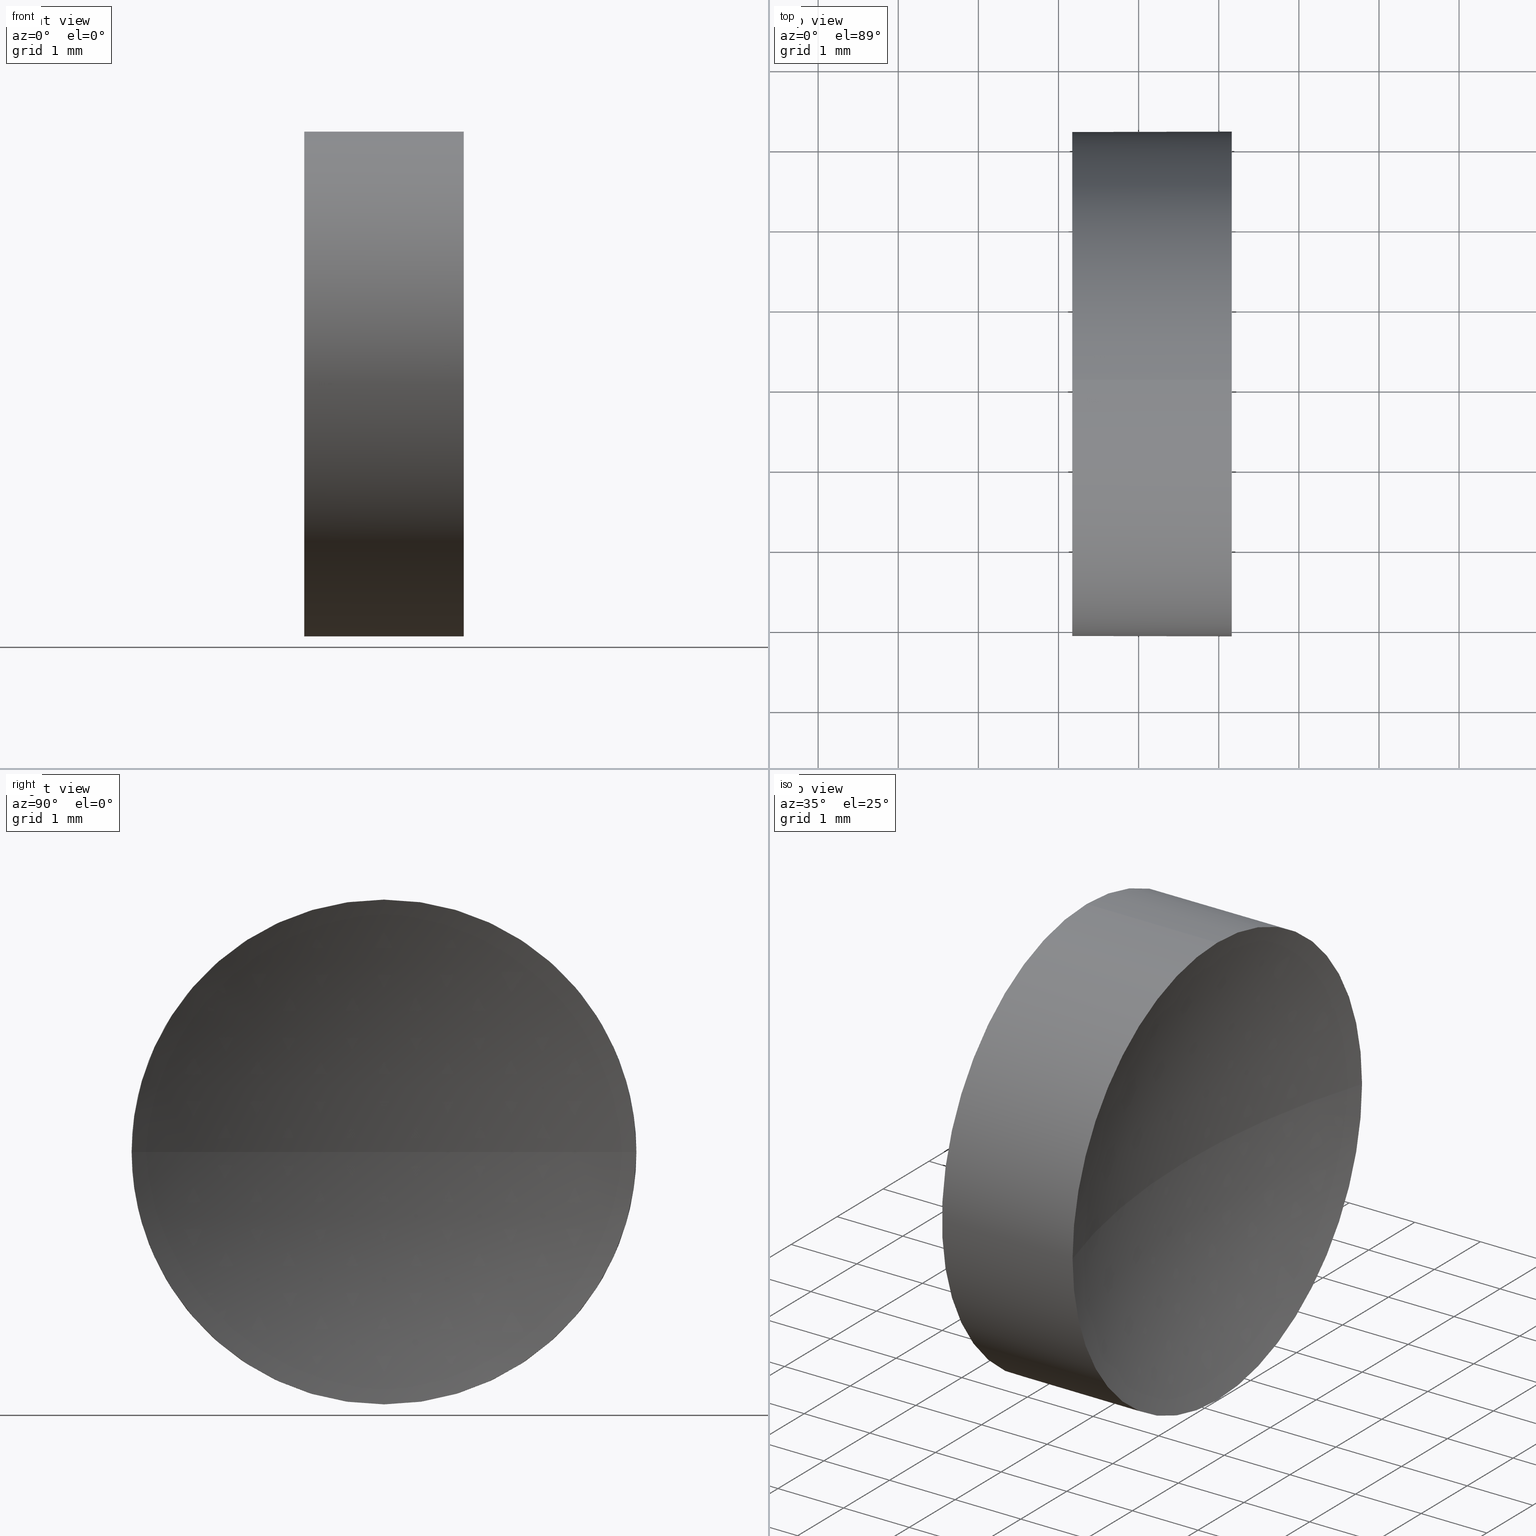
[diagram: canonical four-view strip — front | top / right | iso, engineering-drawing reading convention]
A machine part, canonical four-view strip (front | top / right | iso — engineering-drawing reading convention). The complete STEP part file that produces these views, byte-faithful:
ISO-10303-21;
HEADER;
FILE_DESCRIPTION (( 'STEP AP214' ),
    '1' );
FILE_NAME ('120007.STEP',
    '2019-06-14T03:05:14',
    ( '' ),
    ( '' ),
    'SwSTEP 2.0',
    'SolidWorks 2016',
    '' );
FILE_SCHEMA (( 'AUTOMOTIVE_DESIGN' ));
ENDSEC;

DATA;
#1 = CARTESIAN_POINT ( 'NONE',  ( 34.04218947520227100, 13.04452057459747900, 0.0000000000000000000 ) ) ;
#2 = MANIFOLD_SOLID_BREP ( '��ת1', #129 ) ;
#3 = DIRECTION ( 'NONE',  ( -1.000000000000000000, -0.0000000000000000000, -0.0000000000000000000 ) ) ;
#4 = CARTESIAN_POINT ( 'NONE',  ( 21.22493055706841100, 13.04452057459747900, 3.150000000000001700 ) ) ;
#5 = DIRECTION ( 'NONE',  ( 0.0000000000000000000, 0.0000000000000000000, 1.000000000000000000 ) ) ;
#6 = EDGE_LOOP ( 'NONE', ( #58, #99, #145, #94 ) ) ;
#7 = AXIS2_PLACEMENT_3D ( 'NONE', #50, #3, #176 ) ;
#8 = EDGE_CURVE ( 'NONE', #77, #24, #180, .T. ) ;
#9 = SURFACE_STYLE_USAGE ( .BOTH. , #41 ) ;
#10 = VERTEX_POINT ( 'NONE', #35 ) ;
#11 = PRODUCT_CONTEXT ( 'NONE', #110, 'mechanical' ) ;
#12 = CARTESIAN_POINT ( 'NONE',  ( 0.0000000000000000000, 0.0000000000000000000, 0.0000000000000000000 ) ) ;
#13 = SPHERICAL_SURFACE ( 'NONE', #16, 10.36999999999999400 ) ;
#14 = EDGE_LOOP ( 'NONE', ( #111, #163, #185, #85, #140 ) ) ;
#15 = FILL_AREA_STYLE ('',( #109 ) ) ;
#16 = AXIS2_PLACEMENT_3D ( 'NONE', #39, #130, #182 ) ;
#17 = DIRECTION ( 'NONE',  ( 1.000000000000000000, 0.0000000000000000000, 0.0000000000000000000 ) ) ;
#18 = DIRECTION ( 'NONE',  ( 0.0000000000000000000, 0.0000000000000000000, 1.000000000000000000 ) ) ;
#19 = DIRECTION ( 'NONE',  ( -1.000000000000000000, -0.0000000000000000000, -0.0000000000000000000 ) ) ;
#20 = EDGE_LOOP ( 'NONE', ( #72, #34 ) ) ;
#21 = PRODUCT ( '120007', '120007', '', ( #11 ) ) ;
#22 = CIRCLE ( 'NONE', #7, 3.150000000000001700 ) ;
#23 = CIRCLE ( 'NONE', #86, 10.36999999999999400 ) ;
#24 = VERTEX_POINT ( 'NONE', #73 ) ;
#25 = CARTESIAN_POINT ( 'NONE',  ( 24.16218947520228300, 13.04452057459747900, 3.150000000000001700 ) ) ;
#26 =( NAMED_UNIT ( * ) SI_UNIT ( $, .STERADIAN. ) SOLID_ANGLE_UNIT ( ) );
#27 = DIRECTION ( 'NONE',  ( 0.0000000000000000000, 0.0000000000000000000, 1.000000000000000000 ) ) ;
#28 = CIRCLE ( 'NONE', #121, 3.150000000000001700 ) ;
#29 = EDGE_CURVE ( 'NONE', #77, #158, #104, .T. ) ;
#30 = VECTOR ( 'NONE', #53, 1000.000000000000000 ) ;
#31 = PRODUCT_DEFINITION_SHAPE ( 'NONE', 'NONE',  #150 ) ;
#32 = DIRECTION ( 'NONE',  ( 0.0000000000000000000, 0.0000000000000000000, -1.000000000000000000 ) ) ;
#33 = CARTESIAN_POINT ( 'NONE',  ( 22.17218947520228100, 13.04452057459747900, 0.0000000000000000000 ) ) ;
#34 = ORIENTED_EDGE ( 'NONE', *, *, #127, .T. ) ;
#35 = CARTESIAN_POINT ( 'NONE',  ( 24.16218947520228300, 16.19452057459748000, 3.857637417314165200E-016 ) ) ;
#36 = CARTESIAN_POINT ( 'NONE',  ( 24.16218947520228300, 13.04452057459747900, -3.150000000000001700 ) ) ;
#37 = DIRECTION ( 'NONE',  ( 0.0000000000000000000, 0.0000000000000000000, 1.000000000000000000 ) ) ;
#38 = ADVANCED_BREP_SHAPE_REPRESENTATION ( '120007', ( #2, #141 ), #64 ) ;
#39 = CARTESIAN_POINT ( 'NONE',  ( 34.04218947520227100, 13.04452057459747900, 0.0000000000000000000 ) ) ;
#40 = AXIS2_PLACEMENT_3D ( 'NONE', #164, #17, #87 ) ;
#41 = SURFACE_SIDE_STYLE ('',( #93 ) ) ;
#42 = ORIENTED_EDGE ( 'NONE', *, *, #8, .F. ) ;
#43 = ORIENTED_EDGE ( 'NONE', *, *, #89, .F. ) ;
#44 = SURFACE_STYLE_FILL_AREA ( #15 ) ;
#45 = SHAPE_DEFINITION_REPRESENTATION ( #31, #38 ) ;
#46 = CARTESIAN_POINT ( 'NONE',  ( 34.04218947520227100, 13.04452057459747900, 0.0000000000000000000 ) ) ;
#47 = DIRECTION ( 'NONE',  ( 0.0000000000000000000, -1.000000000000000000, -1.224646799147353200E-016 ) ) ;
#48 = CARTESIAN_POINT ( 'NONE',  ( 22.17218947520228100, 13.04452057459747900, -3.150000000000001700 ) ) ;
#49 = AXIS2_PLACEMENT_3D ( 'NONE', #177, #165, #18 ) ;
#50 = CARTESIAN_POINT ( 'NONE',  ( 24.16218947520228300, 13.04452057459747900, 0.0000000000000000000 ) ) ;
#51 = EDGE_CURVE ( 'NONE', #24, #167, #166, .T. ) ;
#52 = ADVANCED_FACE ( 'NONE', ( #149 ), #13, .F. ) ;
#53 = DIRECTION ( 'NONE',  ( -1.000000000000000000, -0.0000000000000000000, -0.0000000000000000000 ) ) ;
#54 = ORIENTED_EDGE ( 'NONE', *, *, #118, .F. ) ;
#55 = VERTEX_POINT ( 'NONE', #98 ) ;
#56 = UNCERTAINTY_MEASURE_WITH_UNIT (LENGTH_MEASURE( 1.000000000000000100E-005 ), #148, 'distance_accuracy_value', 'NONE');
#57 = FILL_AREA_STYLE_COLOUR ( '', #88 ) ;
#58 = ORIENTED_EDGE ( 'NONE', *, *, #184, .F. ) ;
#59 = PRODUCT_RELATED_PRODUCT_CATEGORY ( 'part', '', ( #21 ) ) ;
#60 = AXIS2_PLACEMENT_3D ( 'NONE', #135, #186, #63 ) ;
#61 = CYLINDRICAL_SURFACE ( 'NONE', #125, 3.150000000000001700 ) ;
#62 =( NAMED_UNIT ( * ) SI_UNIT ( $, .STERADIAN. ) SOLID_ANGLE_UNIT ( ) );
#63 = DIRECTION ( 'NONE',  ( 0.0000000000000000000, 0.0000000000000000000, 1.000000000000000000 ) ) ;
#64 =( GEOMETRIC_REPRESENTATION_CONTEXT ( 3 ) GLOBAL_UNCERTAINTY_ASSIGNED_CONTEXT ( ( #56 ) ) GLOBAL_UNIT_ASSIGNED_CONTEXT ( ( #148, #160, #26 ) ) REPRESENTATION_CONTEXT ( 'NONE', 'WORKASPACE' ) );
#65 = VECTOR ( 'NONE', #168, 1000.000000000000000 ) ;
#66 = EDGE_CURVE ( 'NONE', #167, #10, #28, .T. ) ;
#67 = ADVANCED_FACE ( 'NONE', ( #169 ), #143, .T. ) ;
#68 = CIRCLE ( 'NONE', #95, 3.150000000000001700 ) ;
#69 = PLANE ( 'NONE',  #40 ) ;
#70 = DIRECTION ( 'NONE',  ( 0.0000000000000000000, 0.0000000000000000000, 1.000000000000000000 ) ) ;
#71 = CARTESIAN_POINT ( 'NONE',  ( 24.16218947520228300, 13.04452057459747900, 0.0000000000000000000 ) ) ;
#72 = ORIENTED_EDGE ( 'NONE', *, *, #89, .T. ) ;
#73 = CARTESIAN_POINT ( 'NONE',  ( 24.16218947520228300, 9.894520574597477100, 0.0000000000000000000 ) ) ;
#74 = AXIS2_PLACEMENT_3D ( 'NONE', #71, #179, #5 ) ;
#75 = LINE ( 'NONE', #4, #30 ) ;
#76 =( GEOMETRIC_REPRESENTATION_CONTEXT ( 3 ) GLOBAL_UNCERTAINTY_ASSIGNED_CONTEXT ( ( #155 ) ) GLOBAL_UNIT_ASSIGNED_CONTEXT ( ( #119, #101, #183 ) ) REPRESENTATION_CONTEXT ( 'NONE', 'WORKASPACE' ) );
#77 = VERTEX_POINT ( 'NONE', #36 ) ;
#78 =( GEOMETRIC_REPRESENTATION_CONTEXT ( 3 ) GLOBAL_UNCERTAINTY_ASSIGNED_CONTEXT ( ( #124 ) ) GLOBAL_UNIT_ASSIGNED_CONTEXT ( ( #123, #161, #62 ) ) REPRESENTATION_CONTEXT ( 'NONE', 'WORKASPACE' ) );
#79 = SPHERICAL_SURFACE ( 'NONE', #91, 10.36999999999999400 ) ;
#80 = ORIENTED_EDGE ( 'NONE', *, *, #29, .T. ) ;
#81 = APPLICATION_PROTOCOL_DEFINITION ( 'draft international standard', 'automotive_design', 1998, #110 ) ;
#82 = DIRECTION ( 'NONE',  ( 1.000000000000000000, 0.0000000000000000000, 0.0000000000000000000 ) ) ;
#83 = DIRECTION ( 'NONE',  ( 0.0000000000000000000, 0.0000000000000000000, 1.000000000000000000 ) ) ;
#84 = SURFACE_SIDE_STYLE ('',( #44 ) ) ;
#85 = ORIENTED_EDGE ( 'NONE', *, *, #96, .T. ) ;
#86 = AXIS2_PLACEMENT_3D ( 'NONE', #115, #32, #139 ) ;
#87 = DIRECTION ( 'NONE',  ( 0.0000000000000000000, 0.0000000000000000000, -1.000000000000000000 ) ) ;
#88 = COLOUR_RGB ( '',1.000000000000000000, 1.000000000000000000, 1.000000000000000000 ) ;
#89 = EDGE_CURVE ( 'NONE', #55, #158, #68, .T. ) ;
#90 = FILL_AREA_STYLE ('',( #57 ) ) ;
#91 = AXIS2_PLACEMENT_3D ( 'NONE', #46, #27, #92 ) ;
#92 = DIRECTION ( 'NONE',  ( 0.0000000000000000000, -1.000000000000000000, 0.0000000000000000000 ) ) ;
#93 = SURFACE_STYLE_FILL_AREA ( #90 ) ;
#94 = ORIENTED_EDGE ( 'NONE', *, *, #118, .T. ) ;
#95 = AXIS2_PLACEMENT_3D ( 'NONE', #33, #154, #70 ) ;
#96 = EDGE_CURVE ( 'NONE', #167, #55, #75, .T. ) ;
#97 = CARTESIAN_POINT ( 'NONE',  ( 21.22493055706841100, 13.04452057459747900, 0.0000000000000000000 ) ) ;
#98 = CARTESIAN_POINT ( 'NONE',  ( 22.17218947520228100, 13.04452057459747900, 3.150000000000001700 ) ) ;
#99 = ORIENTED_EDGE ( 'NONE', *, *, #66, .F. ) ;
#100 = FACE_OUTER_BOUND ( 'NONE', #6, .T. ) ;
#101 =( NAMED_UNIT ( * ) PLANE_ANGLE_UNIT ( ) SI_UNIT ( $, .RADIAN. ) );
#102 = ORIENTED_EDGE ( 'NONE', *, *, #66, .T. ) ;
#103 = AXIS2_PLACEMENT_3D ( 'NONE', #1, #107, #47 ) ;
#104 = LINE ( 'NONE', #157, #65 ) ;
#105 = EDGE_CURVE ( 'NONE', #10, #77, #22, .T. ) ;
#106 = CIRCLE ( 'NONE', #60, 3.150000000000001700 ) ;
#107 = DIRECTION ( 'NONE',  ( 0.0000000000000000000, -1.224646799147353200E-016, 1.000000000000000000 ) ) ;
#108 = ORIENTED_EDGE ( 'NONE', *, *, #105, .F. ) ;
#109 = FILL_AREA_STYLE_COLOUR ( '', #181 ) ;
#110 = APPLICATION_CONTEXT ( 'automotive_design' ) ;
#111 = ORIENTED_EDGE ( 'NONE', *, *, #29, .F. ) ;
#112 = FACE_OUTER_BOUND ( 'NONE', #20, .T. ) ;
#113 = PRESENTATION_LAYER_ASSIGNMENT (  '', '', ( #132 ) ) ;
#114 = ADVANCED_FACE ( 'NONE', ( #112 ), #69, .F. ) ;
#115 = CARTESIAN_POINT ( 'NONE',  ( 34.04218947520227100, 13.04452057459747900, 0.0000000000000000000 ) ) ;
#116 = CARTESIAN_POINT ( 'NONE',  ( 24.16218947520228300, 13.04452057459747900, 0.0000000000000000000 ) ) ;
#117 = EDGE_LOOP ( 'NONE', ( #174, #80, #43, #120, #102 ) ) ;
#118 = EDGE_CURVE ( 'NONE', #24, #171, #23, .T. ) ;
#119 =( LENGTH_UNIT ( ) NAMED_UNIT ( * ) SI_UNIT ( .MILLI., .METRE. ) );
#120 = ORIENTED_EDGE ( 'NONE', *, *, #96, .F. ) ;
#121 = AXIS2_PLACEMENT_3D ( 'NONE', #116, #178, #128 ) ;
#122 = PRODUCT_DEFINITION_CONTEXT ( 'detailed design', #172, 'design' ) ;
#123 =( LENGTH_UNIT ( ) NAMED_UNIT ( * ) SI_UNIT ( .MILLI., .METRE. ) );
#124 = UNCERTAINTY_MEASURE_WITH_UNIT (LENGTH_MEASURE( 1.000000000000000100E-005 ), #123, 'distance_accuracy_value', 'NONE');
#125 = AXIS2_PLACEMENT_3D ( 'NONE', #97, #153, #138 ) ;
#126 = ADVANCED_FACE ( 'NONE', ( #137 ), #61, .T. ) ;
#127 = EDGE_CURVE ( 'NONE', #158, #55, #106, .T. ) ;
#128 = DIRECTION ( 'NONE',  ( 0.0000000000000000000, 0.0000000000000000000, 1.000000000000000000 ) ) ;
#129 = CLOSED_SHELL ( 'NONE', ( #126, #52, #152, #67, #114 ) ) ;
#130 = DIRECTION ( 'NONE',  ( 0.0000000000000000000, 0.0000000000000000000, 1.000000000000000000 ) ) ;
#131 = ORIENTED_EDGE ( 'NONE', *, *, #184, .T. ) ;
#132 = STYLED_ITEM ( 'NONE', ( #156 ), #38 ) ;
#133 = PRESENTATION_LAYER_ASSIGNMENT (  '', '', ( #142 ) ) ;
#134 = CARTESIAN_POINT ( 'NONE',  ( 23.67218947520228100, 13.04452057459747900, 0.0000000000000000000 ) ) ;
#135 = CARTESIAN_POINT ( 'NONE',  ( 22.17218947520228100, 13.04452057459747900, 0.0000000000000000000 ) ) ;
#136 = MECHANICAL_DESIGN_GEOMETRIC_PRESENTATION_REPRESENTATION (  '', ( #132 ), #78 ) ;
#137 = FACE_OUTER_BOUND ( 'NONE', #117, .T. ) ;
#138 = DIRECTION ( 'NONE',  ( 0.0000000000000000000, 0.0000000000000000000, 1.000000000000000000 ) ) ;
#139 = DIRECTION ( 'NONE',  ( -1.000000000000000000, 0.0000000000000000000, 0.0000000000000000000 ) ) ;
#140 = ORIENTED_EDGE ( 'NONE', *, *, #127, .F. ) ;
#141 = AXIS2_PLACEMENT_3D ( 'NONE', #12, #83, #82 ) ;
#142 = STYLED_ITEM ( 'NONE', ( #162 ), #2 ) ;
#143 = CYLINDRICAL_SURFACE ( 'NONE', #49, 3.150000000000001700 ) ;
#144 = CARTESIAN_POINT ( 'NONE',  ( 24.16218947520228300, 13.04452057459747900, 0.0000000000000000000 ) ) ;
#145 = ORIENTED_EDGE ( 'NONE', *, *, #51, .F. ) ;
#146 = CIRCLE ( 'NONE', #103, 10.36999999999999400 ) ;
#147 = EDGE_LOOP ( 'NONE', ( #108, #131, #54, #42 ) ) ;
#148 =( LENGTH_UNIT ( ) NAMED_UNIT ( * ) SI_UNIT ( .MILLI., .METRE. ) );
#149 = FACE_OUTER_BOUND ( 'NONE', #147, .T. ) ;
#150 = PRODUCT_DEFINITION ( 'δ֪', '', #159, #122 ) ;
#151 = MECHANICAL_DESIGN_GEOMETRIC_PRESENTATION_REPRESENTATION (  '', ( #142 ), #76 ) ;
#152 = ADVANCED_FACE ( 'NONE', ( #100 ), #79, .F. ) ;
#153 = DIRECTION ( 'NONE',  ( -1.000000000000000000, -0.0000000000000000000, -0.0000000000000000000 ) ) ;
#154 = DIRECTION ( 'NONE',  ( -1.000000000000000000, -0.0000000000000000000, -0.0000000000000000000 ) ) ;
#155 = UNCERTAINTY_MEASURE_WITH_UNIT (LENGTH_MEASURE( 1.000000000000000100E-005 ), #119, 'distance_accuracy_value', 'NONE');
#156 = PRESENTATION_STYLE_ASSIGNMENT (( #170 ) ) ;
#157 = CARTESIAN_POINT ( 'NONE',  ( 21.22493055706841100, 13.04452057459747900, -3.150000000000001700 ) ) ;
#158 = VERTEX_POINT ( 'NONE', #48 ) ;
#159 = PRODUCT_DEFINITION_FORMATION_WITH_SPECIFIED_SOURCE ( '�κ�', '', #21, .NOT_KNOWN. ) ;
#160 =( NAMED_UNIT ( * ) PLANE_ANGLE_UNIT ( ) SI_UNIT ( $, .RADIAN. ) );
#161 =( NAMED_UNIT ( * ) PLANE_ANGLE_UNIT ( ) SI_UNIT ( $, .RADIAN. ) );
#162 = PRESENTATION_STYLE_ASSIGNMENT (( #9 ) ) ;
#163 = ORIENTED_EDGE ( 'NONE', *, *, #8, .T. ) ;
#164 = CARTESIAN_POINT ( 'NONE',  ( 22.17218947520228100, 13.04452057459747900, 0.0000000000000000000 ) ) ;
#165 = DIRECTION ( 'NONE',  ( -1.000000000000000000, -0.0000000000000000000, -0.0000000000000000000 ) ) ;
#166 = CIRCLE ( 'NONE', #175, 3.150000000000001700 ) ;
#167 = VERTEX_POINT ( 'NONE', #25 ) ;
#168 = DIRECTION ( 'NONE',  ( -1.000000000000000000, -0.0000000000000000000, -0.0000000000000000000 ) ) ;
#169 = FACE_OUTER_BOUND ( 'NONE', #14, .T. ) ;
#170 = SURFACE_STYLE_USAGE ( .BOTH. , #84 ) ;
#171 = VERTEX_POINT ( 'NONE', #134 ) ;
#172 = APPLICATION_CONTEXT ( 'automotive_design' ) ;
#173 = APPLICATION_PROTOCOL_DEFINITION ( 'draft international standard', 'automotive_design', 1998, #172 ) ;
#174 = ORIENTED_EDGE ( 'NONE', *, *, #105, .T. ) ;
#175 = AXIS2_PLACEMENT_3D ( 'NONE', #144, #19, #37 ) ;
#176 = DIRECTION ( 'NONE',  ( 0.0000000000000000000, 0.0000000000000000000, 1.000000000000000000 ) ) ;
#177 = CARTESIAN_POINT ( 'NONE',  ( 21.22493055706841100, 13.04452057459747900, 0.0000000000000000000 ) ) ;
#178 = DIRECTION ( 'NONE',  ( -1.000000000000000000, -0.0000000000000000000, -0.0000000000000000000 ) ) ;
#179 = DIRECTION ( 'NONE',  ( -1.000000000000000000, -0.0000000000000000000, -0.0000000000000000000 ) ) ;
#180 = CIRCLE ( 'NONE', #74, 3.150000000000001700 ) ;
#181 = COLOUR_RGB ( '',1.000000000000000000, 1.000000000000000000, 1.000000000000000000 ) ;
#182 = DIRECTION ( 'NONE',  ( 0.0000000000000000000, -1.000000000000000000, 0.0000000000000000000 ) ) ;
#183 =( NAMED_UNIT ( * ) SI_UNIT ( $, .STERADIAN. ) SOLID_ANGLE_UNIT ( ) );
#184 = EDGE_CURVE ( 'NONE', #10, #171, #146, .T. ) ;
#185 = ORIENTED_EDGE ( 'NONE', *, *, #51, .T. ) ;
#186 = DIRECTION ( 'NONE',  ( -1.000000000000000000, -0.0000000000000000000, -0.0000000000000000000 ) ) ;
ENDSEC;
END-ISO-10303-21;
